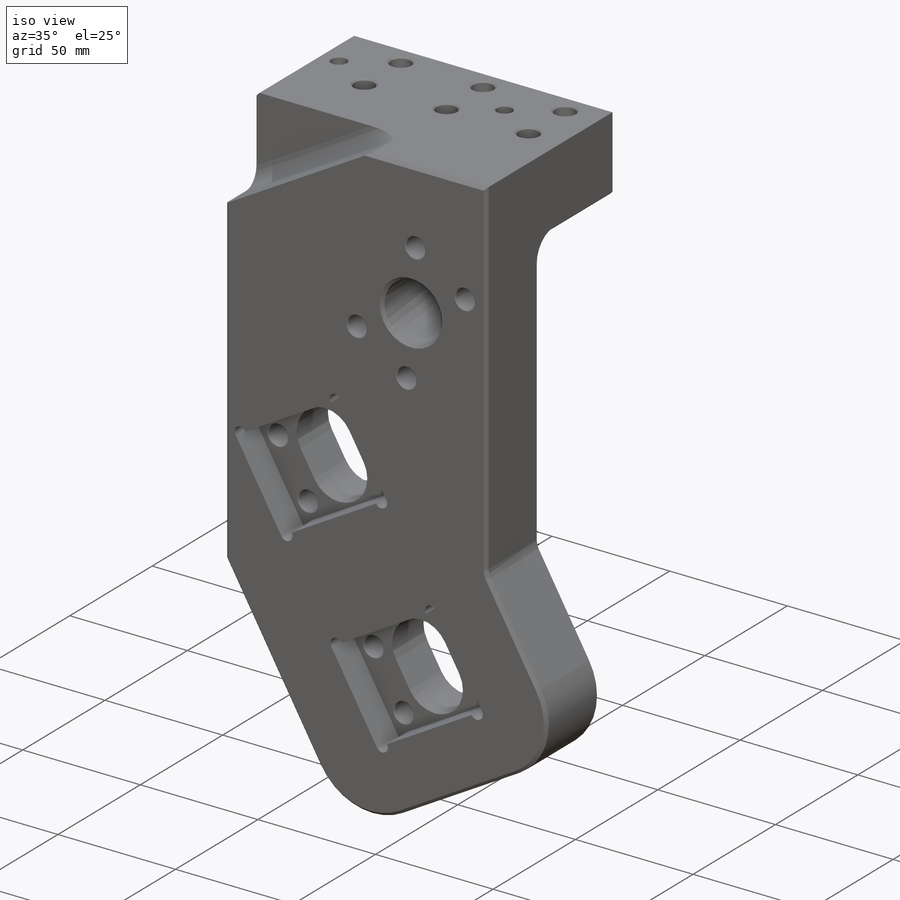
[diagram: iso view]
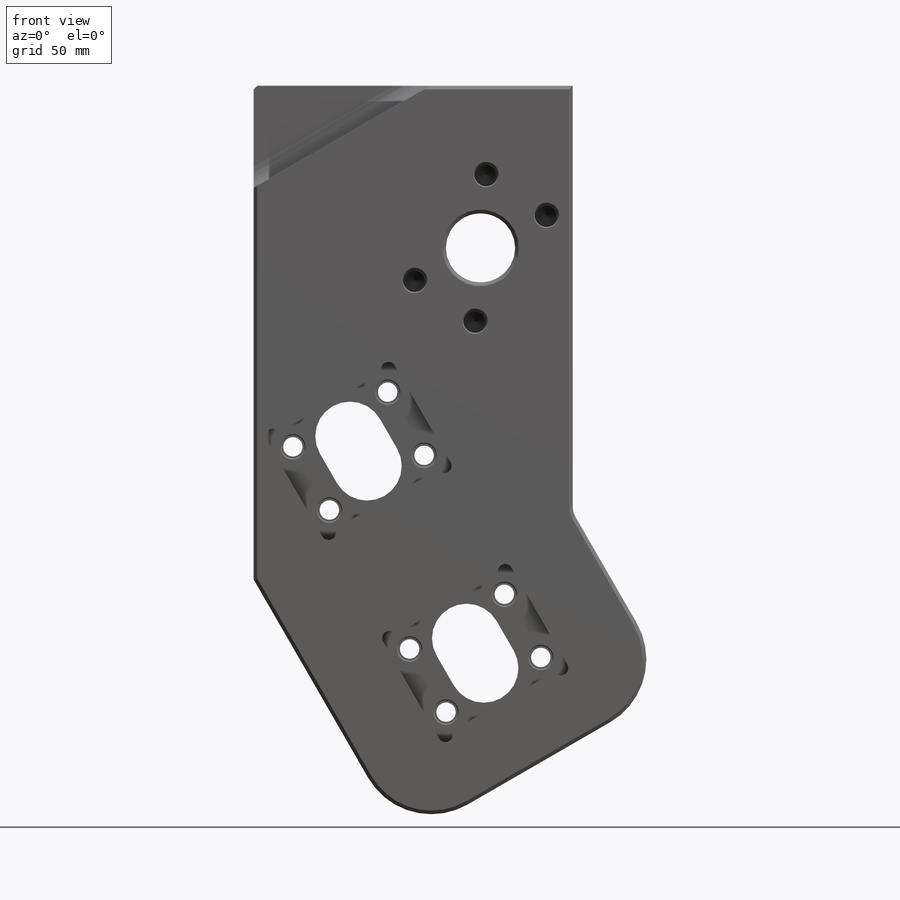
[diagram: front view]
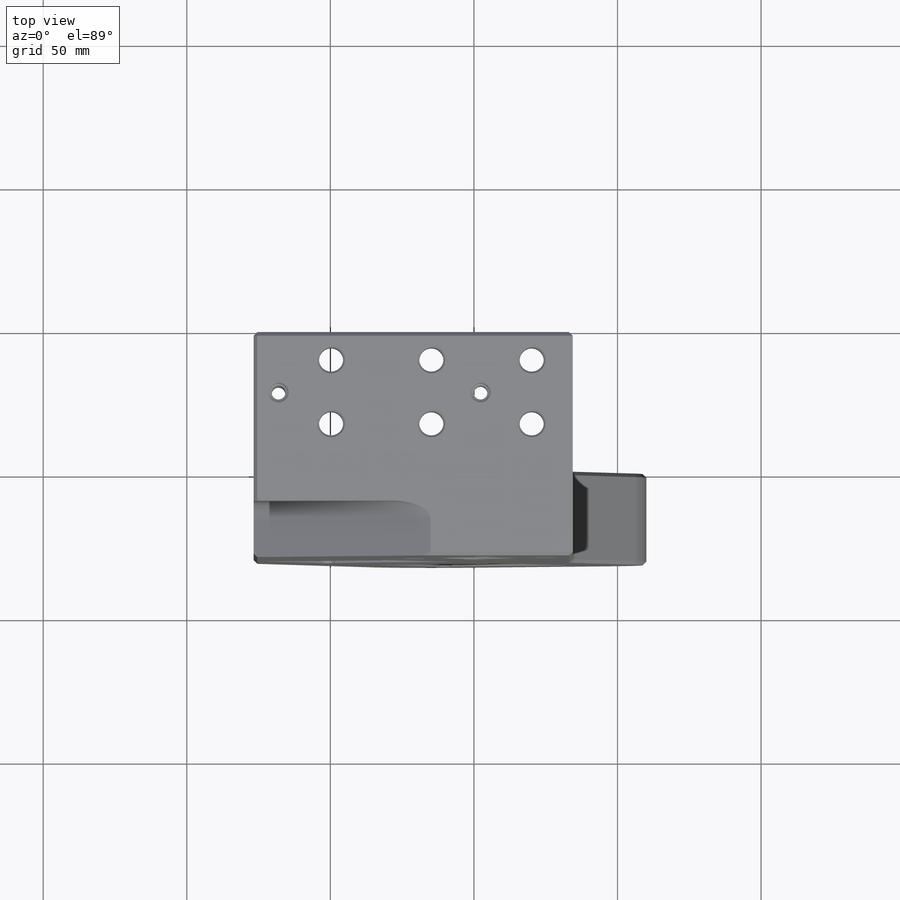
[diagram: top view]
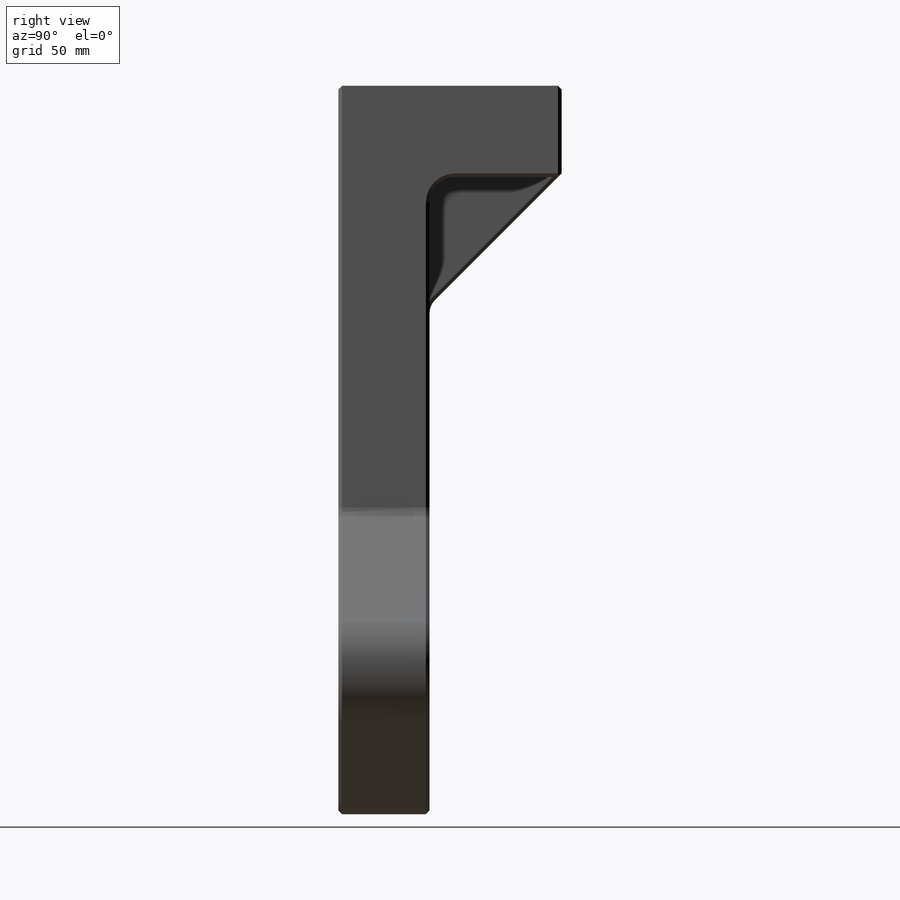
[diagram: right view]
SOLIDWORKS PART (.sldprt)
format: sldprt  version: not decoded by parser v0  size: 1,169,408 bytes
history: native  units: mm
features: sketch x19, hole x5, cut_extrude x5, extrude x4, plane x3, fillet x3, chamfer x3, pattern_linear x2, material x1 (+11 scaffold rows collapsed)
feature tree (56):
  scaffold x11  (default folders/planes/origin — collapsed)
  material  "304 SSTL"
  plane  "XY"
  plane  "XZ"
  plane  "YZ"
  sketch  "Sketch1"  dims[c1.D2=0.0mm c1.D5=0.0mm c1.D13=0.0mm c2.D5=0.0mm c2.D9=0.0mm c2.D13=0.0mm c2.D8=0.0mm c3.D9=0.0mm c3.D12=0.0mm c3.D1=0.0mm c3.D3=0.0mm c4.D3=0.0deg c4.D4=0.0mm c4.D5=0.0mm c4.D6=0.0mm c4.D2=0.0mm c5.D2=0.0mm c5.D3=0.0mm c6.D3=0.0deg c7.D3=0.0mm c8.D3=0.0deg c8.D13=0.0mm c9.D13=0.0deg c9.D3=0.0mm c9.D7=0.0mm c10.D7=0.0deg c10.D8=0.0mm c10.D9=0.0mm c10.D5=0.0mm c10.D4=~0.030518mm c11.D8=~131072031.135509mm c11.D10=8589936629626.251mm c12.D10=0.0mm c12.D11=0.0mm c13.D11=0.0deg c13.D10=0.0mm c13.D12=0.0mm c13.D14=0.0mm c14.D10=~-0.030518mm]
  extrude  "Extrude1"  Depth=0mm
  sketch  "Sketch2"  dims[D3=0.0mm D4=0.0mm D5=0.0mm D1=0.0mm D2=0.0mm]
  extrude  "Extrude2"  Depth=0mm
  fillet  "Fillet7"  [1 undecoded]
  sketch  "Sketch26"  dims[D1=0.0mm]
  extrude  "Extrude3"  Depth=0mm
  chamfer  "Chamfer4"  Distance=0mm Angle=0deg RestraintType=-0.015144 Value=-15.144348mm cosRestraintComp:1=-15.144348mm cosRestraintComp:2=-15.144348mm cosRestraintComp:3=-15.144348mm cosRestraintComp:4=-15.144348mm cosRestraintComp:5=-15.144348mm cosRestraintComp:6=-15.144348mm Unit=-15.14435mm AnalysisType=-15.144348mm MeshType=-15.144348mm cosRestraintCompCheck1=-15.144348mm cosRestraintCompCheck2=-15.144348mm cosRestraintCompCheck3=-15.144348mm
  hole  "Tapped Hole for 1/4-20 Helicoil1"  Diameter=0mm Depth=0mm
  sketch  "Sketch33"  dims[c1.D4=0.0mm c1.D3=0.0mm c2.D4=0.0mm]
  sketch  "Sketch32"  dims[c1.D1=0.0mm c1.D2=0.0mm c1.4=0.0mm c1.D4=0.0mm c1.D7=0.0mm c1.D5=0.0mm c1.D3=0.0mm c1.D6=0.0mm c2.D5=0.0mm c2.D7=0.0mm c3.D7=0.0deg c3.D6=0.0deg c3.D8=0.0mm c4.D8=0.0deg c4.D9=0.0mm c5.D9=0.0deg c5.D3=0.0mm c5.D4=0.0mm c5.D5=0.0mm c5.D6=0.0mm c6.D6=0.0deg c6.D7=0.0mm c6.D8=0.0mm c7.D8=0.0deg c7.D9=0.0mm c8.D9=0.0deg c8.Tap Drill Dia.=0.0mm c8.Tap Drill Depth=0.0mm c8.Thread Major Dia.=0.0mm c8.Thread Depth=0.0mm c8.Near C'Sink Dia.=0.0mm c8.D6=0.0mm c8.Near C'Sink Angle=0.0deg c8.D7=0.0mm c8.Drill Angle=0.0deg]
  sketch  "Sketch18"  dims[c1.D1=0.0mm c1.D3=0.0mm c1.D4=0.0mm c1.D5=0.0mm c1.D6=0.0mm c1.D8=0.0mm c2.D5=0.0mm c2.D6=0.0mm c2.D1=0.0mm c2.D2=~-2000.000473mm c2.D7=~-2000.000473mm c3.D1=0.0mm c3.D2=0.0mm c4.D2=0.0deg c4.D8=0.0mm c4.D9=0.0mm c5.D8=0.0mm c5.D9=0.0mm c5.D1=0.0mm c5.D7=0.0mm c6.D8=0.0mm c6.D1=0.0mm c6.D2=0.0mm]
  cut_extrude  "Cut-Extrude13"  Depth=0mm
  sketch  "Sketch21"  dims[c1.D3=0.0mm c1.D4=0.0mm c1.D5=0.0mm c1.D6=0.0mm c2.D3=~131072030.963916mm c2.D4=8589936621251.2mm c2.D1=0.0mm c2.D2=0.0mm c3.D1=0.0mm c3.D3=0.0mm c3.D4=~0.030518mm c4.D1=0.0mm]
  fillet  "Fillet5"  Radius=0mm
  cut_extrude  "Cut-Extrude16"  [1 undecoded]
  sketch  "Sketch24"
  cut_extrude  "Cut-Extrude17"  [1 undecoded]
  pattern_linear  "LPattern2"  [2 undecoded]
  sketch  "Sketch29"  dims[c1.D1=0.0mm c2.D1=0.0deg c3.D1=0.0mm c3.D2=0.0mm c4.D2=0.0deg]
  cut_extrude  "Cut-Extrude18"  Depth=0mm
  chamfer  "Chamfer3"  [1 undecoded]
  sketch  "Sketch30"  dims[D1=-8589936630188.869mm]
  extrude  "Extrude4"  [1 undecoded]
  fillet  "Fillet6"  Radius=0mm
  hole  "CBORE for 5/16 Socket Head Cap Screw1"  Diameter=0mm Depth=0mm
  sketch  "Sketch28"  dims[c1.D1=0.0mm c1.D2=0.0mm c1.D3=0.0mm c2.D2=0.0mm c2.D1=0.0mm c3.D2=0.0mm]
  sketch  "Sketch27"  dims[c1.D1=0.0mm c1.D2=0.0mm c1.4=0.0mm c1.D4=0.0mm c1.D7=0.0mm c1.D5=0.0mm c1.D3=0.0mm c1.D6=0.0mm c2.D5=0.0mm c2.D7=0.0mm c3.D7=0.0deg c3.D6=0.0deg c3.D8=0.0mm c4.D8=0.0deg c4.D9=0.0mm c5.D9=0.0deg c5.D3=0.0mm c5.D4=0.0mm c5.D5=0.0mm c5.D6=0.0mm c6.D6=0.0deg c6.D7=0.0mm c6.D8=0.0mm c7.D8=0.0deg c7.D9=0.0mm c8.D9=0.0deg c8.D1=0.0mm c8.D2=0.0mm c9.D1=0.0mm c9.D2=0.0mm c9.D3=0.0mm c9.D4=0.0mm c9.D5=0.0mm c9.D6=0.0mm c10.D6=0.0deg c10.D7=0.0mm c10.D8=0.0mm c11.D8=0.0deg c11.D9=0.0mm c11.D10=0.0mm c12.D10=0.0deg c12.Thru Hole Dia.=0.0mm c12.Thru Hole Depth=0.0mm c12.C'Bore Dia.=0.0mm c12.C'Bore Depth=0.0mm c12.Mid C'Sink Dia.=0.0mm c12.D6=0.0mm c12.Mid C'Sink Angle=0.0deg c12.Far C'Sink Dia.=0.0mm c12.D8=0.0mm c12.Far C'Sink Angle=0.0deg c12.D9=0.0mm]
  sketch  "Sketch31"
  cut_extrude  "CBORE CUT TO CLEAR RADIUS"  [1 undecoded]
  pattern_linear  "LPattern3"  Spacing1=0mm Spacing2=0mm  [1 undecoded]
  hole  "Tapped Hole for 1/4-20 Helicoil2"  Diameter=0mm Depth=0mm
  sketch  "Sketch35"  dims[c1.D7=0.0mm c1.D5=0.0mm c1.D6=0.0mm c2.D7=0.0mm c2.D8=0.0mm]
  sketch  "Sketch34"  dims[c1.D1=0.0mm c1.D2=0.0mm c1.4=0.0mm c1.D4=0.0mm c1.D7=0.0mm c1.D5=0.0mm c1.D3=0.0mm c1.D6=0.0mm c2.D5=0.0mm c2.D7=0.0mm c3.D7=0.0deg c3.D6=0.0deg c3.D8=0.0mm c4.D8=0.0deg c4.D9=0.0mm c5.D9=0.0deg c5.D3=0.0mm c5.D4=0.0mm c5.D5=0.0mm c5.D6=0.0mm c6.D6=0.0deg c6.D7=0.0mm c6.D8=0.0mm c7.D8=0.0deg c7.D9=0.0mm c8.D9=0.0deg c8.D1=0.0mm c8.D2=0.0mm c9.D1=0.0mm c9.D2=0.0mm c9.D3=0.0mm c9.D4=0.0mm c9.D5=0.0mm c9.D6=0.0mm c10.D6=0.0deg c10.D7=0.0mm c10.D8=0.0mm c11.D8=0.0deg c11.D9=0.0mm c11.D10=0.0mm c12.D10=0.0deg c12.Thru Tap Drill Dia.=0.0mm c12.Thru Tap Drill Depth=0.0mm c12.Thread Major Dia.=0.0mm c12.Thread Depth=0.0mm c12.Near C'Sink Dia.=0.0mm c12.D6=0.0mm c12.Near C'Sink Angle=0.0deg]
  chamfer  "Chamfer2"  [1 undecoded]
  hole  "CBORE for 1/4 Socket Head Cap Screw1"  Diameter=0mm Depth=0mm
  sketch  "Sketch42"  dims[c1.D1=0.0mm c1.D2=0.0mm c2.D1=0.0mm c2.D2=0.0mm c2.D3=~0.030518mm]
  sketch  "Sketch41"  dims[c1.D1=0.0mm c1.D2=0.0mm c1.4=0.0mm c1.D4=0.0mm c1.D7=0.0mm c1.D5=0.0mm c1.D3=0.0mm c1.D6=0.0mm c2.D5=0.0mm c2.D7=0.0mm c3.D7=0.0deg c3.D6=0.0deg c3.D8=0.0mm c4.D8=0.0deg c4.D9=0.0mm c5.D9=0.0deg c5.D3=0.0mm c5.D4=0.0mm c5.D5=0.0mm c5.D6=0.0mm c6.D6=0.0deg c6.D7=0.0mm c6.D8=0.0mm c7.D8=0.0deg c7.D9=0.0mm c8.D9=0.0deg c8.Hole Dia.=0.0mm c8.Hole Depth=0.0mm c8.C'Bore Dia.=0.0mm c8.C'Bore Depth=0.0mm c8.Near C'Sink Dia.=0.0mm c8.D6=0.0mm c8.Near C'Sink Angle=0.0deg c8.D7=0.0mm c8.Drill Angle=0.0deg]
  hole  "3/16 (0.1875) Diameter Hole1"  Diameter=0mm Depth=0mm
  sketch  "Sketch44"
  sketch  "Sketch43"  dims[c1.D1=0.0mm c1.D2=0.0mm c1.4=0.0mm c1.D4=0.0mm c1.D7=0.0mm c1.D5=0.0mm c1.D3=0.0mm c1.D6=0.0mm c2.D5=0.0mm c2.D7=0.0mm c3.D7=0.0deg c3.D6=0.0deg c3.D8=0.0mm c4.D8=0.0deg c4.D9=0.0mm c5.D9=0.0deg c5.D3=0.0mm c5.D4=0.0mm c5.D5=0.0mm c5.D6=0.0mm c6.D6=0.0deg c6.D7=0.0mm c6.D8=0.0mm c7.D8=0.0deg c7.D9=0.0mm c8.D9=0.0deg c8.D1=0.0mm c8.D2=0.0mm c8.D3=0.0mm c9.D1=0.0mm c10.D1=0.0deg c11.D1=0.0mm c11.D2=0.0mm c11.D3=0.0mm c11.D4=0.0mm c12.D4=0.0deg c12.D5=0.0mm c13.D5=0.0deg c13.D6=0.0mm c13.D1=0.0mm c13.D2=0.0mm c13.D3=0.0mm c13.D4=0.0mm c14.D4=0.0deg c14.D5=0.0mm c15.D5=0.0deg c15.D1=0.0mm c15.D2=0.0mm c15.D3=0.0mm c15.D4=0.0mm c16.D4=0.0deg c16.D5=0.0mm c16.D6=0.0mm c17.D6=0.0deg c17.D1=0.0mm c17.D2=0.0mm c17.D3=0.0mm c17.D4=0.0mm c18.D4=0.0deg c18.Thru Hole Dia.=0.0mm c18.Thru Hole Depth=0.0mm]
decode coverage: 30 of 41 modeling features carry decoded parameters
note: ~ marks probable driven/reference dimensions
note: 10 parameter values undecoded
summary: no parameter record found for 7 features; Diameter pulled from absorbed wizard sketch
note: suppression state not decoded; provenance and decode notes live in map.json
